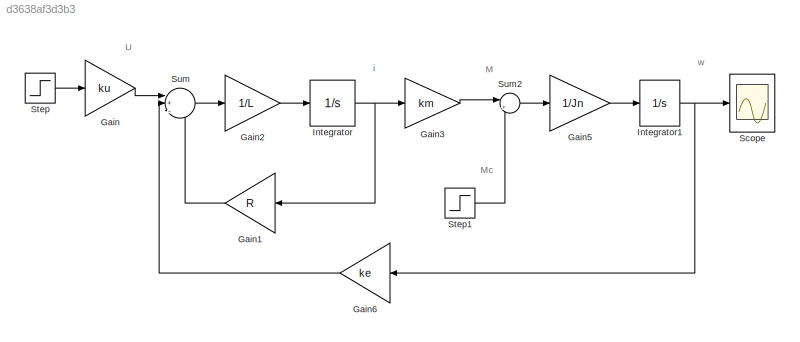
MODEL slx_d3638af3d3b3
KIND model
CONFIG AbsTol = auto
CONFIG EnableMultiTasking = off
CONFIG FixedStep = auto
CONFIG MaxStep = auto
CONFIG MinStep = auto
CONFIG RelTol = 1e-3
CONFIG SampleTimeConstraint = Unconstrained
CONFIG SolverName = VariableStepAuto
CONFIG StartTime = 0.0
CONFIG StopTime = 0.5
BLOCK [Gain] Gain
  Gain = ku
BLOCK [Gain] Gain1
  Gain = R
BLOCK [Gain] Gain2
  Gain = 1/L
BLOCK [Gain] Gain3
  Gain = km
BLOCK [Gain] Gain5
  Gain = 1/Jn
BLOCK [Gain] Gain6
  Gain = ke
BLOCK [Integrator] Integrator
  Ports = [1, 1]
BLOCK [Integrator] Integrator1
  Ports = [1, 1]
BLOCK [Scope] Scope
  Floating = off
  NumInputPorts = 1
  Ports = [1]
  ScopeSpecificationString = Simulink.scopes.TimeScopeBlockCfg('CurrentConfiguration', extmgr.ConfigurationSet(extmgr.Configuration('Core','General UI',true,'FigureColor',[1 1 1]),extmgr.Configuration('Core','Source UI',true),extmgr.Configuration('Sources','WiredSimulink',true),extmgr.Configuration('Visuals','Time Domain',true,'PlotType','Line','SerializedDisplays',{struct('MinYLimReal','-10.56683','MaxYLimReal','95.10147','Y...<+1583ch>
BLOCK [Step] Step
  SampleTime = 0
  Time = 0
BLOCK [Step] Step1
  After = 0.02
  SampleTime = 0
  Time = 0.35
BLOCK [Sum] Sum
  Inputs = |+--
  Ports = [3, 1]
BLOCK [Sum] Sum2
  Inputs = |+-
  Ports = [2, 1]
ANNOTATION (root): M
ANNOTATION (root): Mc
ANNOTATION (root): U
ANNOTATION (root): i
ANNOTATION (root): w
LINE Gain1:1 -> Sum:3
LINE Gain2:1 -> Integrator:1
LINE Gain3:1 -> Sum2:1
LINE Gain5:1 -> Integrator1:1
LINE Gain6:1 -> Sum:2
LINE Gain:1 -> Sum:1
NET Integrator1:1 -> Gain6:1, Scope:1
NET Integrator:1 -> Gain1:1, Gain3:1
LINE Step1:1 -> Sum2:2
LINE Step:1 -> Gain:1
LINE Sum2:1 -> Gain5:1
LINE Sum:1 -> Gain2:1
note: NET lines group one-source signal fan-out (src -> all destinations, sorted); 1:1 wires keep LINE
